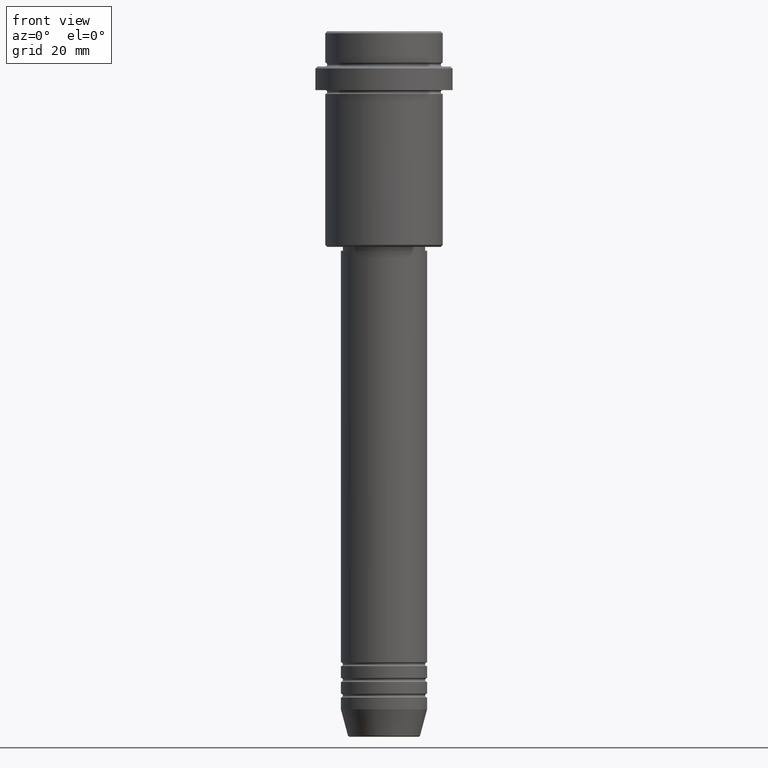
[diagram: clean part render]
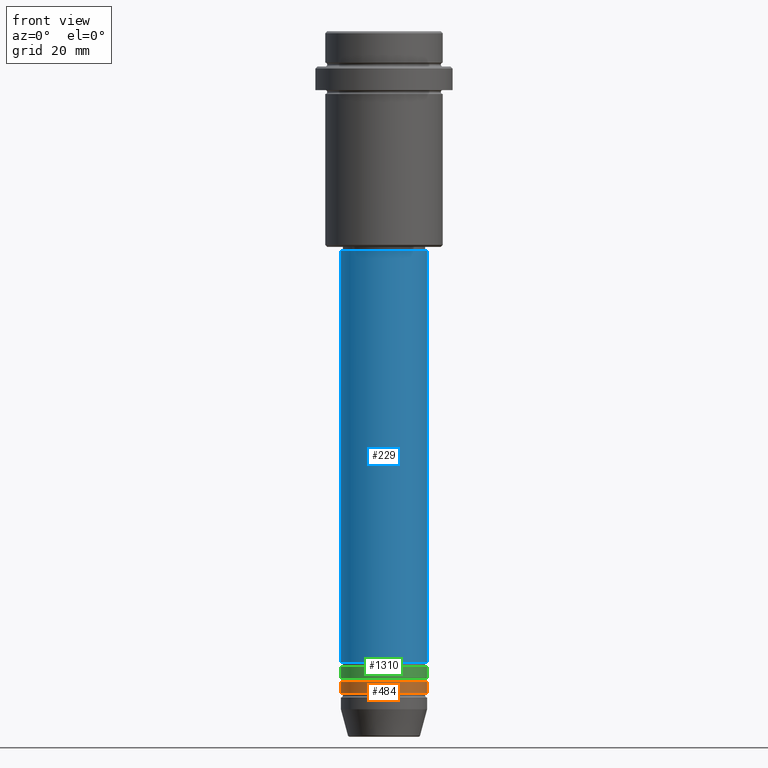
[diagram: same view with three faces highlighted in distinct colors, each labeled with its STEP entity id]
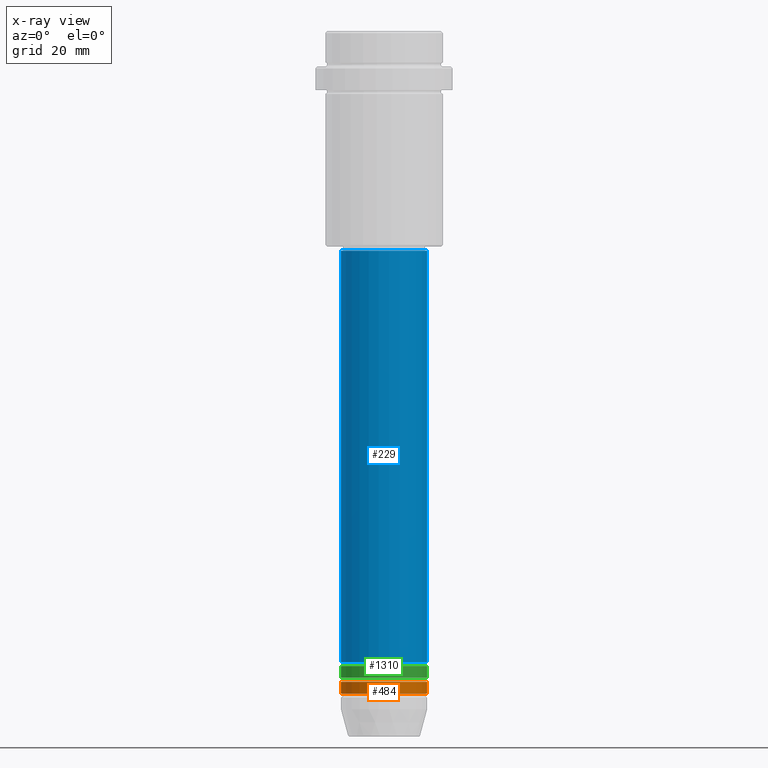
[diagram: x-ray of the same camera — body ghosted, the three highlighted faces saturated]
A machine part, front view with three faces highlighted in distinct colors.
The next image is the same camera in x-ray (body ghosted, the three faces saturated) — at least one of them is partly hidden behind the body in this view.
Their STEP definitions:

[orange] entity #484 — the highlighted cylindrical surface (partial cylindrical patch) has radius 11 mm, axis along (-0, -0, 1).
#60 = CARTESIAN_POINT ( 'NONE',  ( -11.00000000000000000, 1.347111479062088405E-15, 0.000000000000000000 ) ) ;
#119 = CYLINDRICAL_SURFACE ( 'NONE', #1223, 11.00000000000000000 ) ;
#164 = VERTEX_POINT ( 'NONE', #1098 ) ;
#207 = EDGE_CURVE ( 'NONE', #1021, #1233, #489, .T. ) ;
#215 = FACE_OUTER_BOUND ( 'NONE', #1370, .T. ) ;
#220 = DIRECTION ( 'NONE',  ( -0.000000000000000000, -0.000000000000000000, 1.000000000000000000 ) ) ;
#234 = ORIENTED_EDGE ( 'NONE', *, *, #207, .F. ) ;
#235 = CARTESIAN_POINT ( 'NONE',  ( -11.00000000000000000, 1.347111479062088405E-15, -168.9999999999998863 ) ) ;
#252 = ORIENTED_EDGE ( 'NONE', *, *, #457, .F. ) ;
#266 = VECTOR ( 'NONE', #962, 1000.000000000000000 ) ;
#302 = DIRECTION ( 'NONE',  ( 1.000000000000000000, 0.000000000000000000, 0.000000000000000000 ) ) ;
#385 = LINE ( 'NONE', #831, #522 ) ;
#393 = CARTESIAN_POINT ( 'NONE',  ( -11.00000000000000000, 1.347111479062088405E-15, -165.9999999999998579 ) ) ;
#396 = CARTESIAN_POINT ( 'NONE',  ( 0.000000000000000000, 0.000000000000000000, -168.9999999999998863 ) ) ;
#430 = DIRECTION ( 'NONE',  ( -0.000000000000000000, -0.000000000000000000, 1.000000000000000000 ) ) ;
#457 = EDGE_CURVE ( 'NONE', #1233, #1215, #562, .T. ) ;
#484 = ADVANCED_FACE ( 'NONE', ( #215 ), #119, .T. ) ;
#489 = LINE ( 'NONE', #60, #266 ) ;
#522 = VECTOR ( 'NONE', #1378, 1000.000000000000000 ) ;
#562 = CIRCLE ( 'NONE', #1363, 11.00000000000000000 ) ;
#797 = AXIS2_PLACEMENT_3D ( 'NONE', #396, #1280, #302 ) ;
#799 = EDGE_CURVE ( 'NONE', #1021, #164, #1072, .T. ) ;
#831 = CARTESIAN_POINT ( 'NONE',  ( 11.00000000000000000, 0.000000000000000000, 0.000000000000000000 ) ) ;
#874 = DIRECTION ( 'NONE',  ( 1.000000000000000000, 0.000000000000000000, 0.000000000000000000 ) ) ;
#887 = CARTESIAN_POINT ( 'NONE',  ( 0.000000000000000000, 0.000000000000000000, 0.000000000000000000 ) ) ;
#962 = DIRECTION ( 'NONE',  ( -0.000000000000000000, -0.000000000000000000, 1.000000000000000000 ) ) ;
#1021 = VERTEX_POINT ( 'NONE', #235 ) ;
#1072 = CIRCLE ( 'NONE', #797, 11.00000000000000000 ) ;
#1097 = DIRECTION ( 'NONE',  ( 1.000000000000000000, 0.000000000000000000, 0.000000000000000000 ) ) ;
#1098 = CARTESIAN_POINT ( 'NONE',  ( 11.00000000000000000, 0.000000000000000000, -168.9999999999998863 ) ) ;
#1162 = CARTESIAN_POINT ( 'NONE',  ( 11.00000000000000000, 0.000000000000000000, -165.9999999999998579 ) ) ;
#1174 = EDGE_CURVE ( 'NONE', #164, #1215, #385, .T. ) ;
#1215 = VERTEX_POINT ( 'NONE', #1162 ) ;
#1223 = AXIS2_PLACEMENT_3D ( 'NONE', #887, #430, #874 ) ;
#1233 = VERTEX_POINT ( 'NONE', #393 ) ;
#1253 = ORIENTED_EDGE ( 'NONE', *, *, #799, .T. ) ;
#1268 = ORIENTED_EDGE ( 'NONE', *, *, #1174, .T. ) ;
#1280 = DIRECTION ( 'NONE',  ( -0.000000000000000000, -0.000000000000000000, 1.000000000000000000 ) ) ;
#1301 = CARTESIAN_POINT ( 'NONE',  ( 0.000000000000000000, 0.000000000000000000, -165.9999999999998579 ) ) ;
#1363 = AXIS2_PLACEMENT_3D ( 'NONE', #1301, #220, #1097 ) ;
#1370 = EDGE_LOOP ( 'NONE', ( #234, #1253, #1268, #252 ) ) ;
#1378 = DIRECTION ( 'NONE',  ( -0.000000000000000000, -0.000000000000000000, 1.000000000000000000 ) ) ;

[blue] entity #229 — the highlighted cylindrical surface (partial cylindrical patch) has radius 11 mm, axis along (-0, -0, 1).
#41 = FACE_OUTER_BOUND ( 'NONE', #620, .T. ) ;
#46 = CARTESIAN_POINT ( 'NONE',  ( -11.00000000000000000, 1.347111479062088405E-15, 0.000000000000000000 ) ) ;
#66 = VECTOR ( 'NONE', #147, 1000.000000000000000 ) ;
#147 = DIRECTION ( 'NONE',  ( -0.000000000000000000, -0.000000000000000000, 1.000000000000000000 ) ) ;
#152 = CIRCLE ( 'NONE', #1157, 10.99999999999999822 ) ;
#158 = CARTESIAN_POINT ( 'NONE',  ( 0.000000000000000000, 0.000000000000000000, -55.99999999999999289 ) ) ;
#212 = CARTESIAN_POINT ( 'NONE',  ( 10.99999999999999822, 0.000000000000000000, -55.99999999999999289 ) ) ;
#229 = ADVANCED_FACE ( 'NONE', ( #41 ), #821, .T. ) ;
#281 = DIRECTION ( 'NONE',  ( -0.000000000000000000, -0.000000000000000000, 1.000000000000000000 ) ) ;
#314 = ORIENTED_EDGE ( 'NONE', *, *, #554, .F. ) ;
#339 = CARTESIAN_POINT ( 'NONE',  ( 11.00000000000000000, 0.000000000000000000, -160.9999999999998579 ) ) ;
#350 = DIRECTION ( 'NONE',  ( 1.000000000000000000, 0.000000000000000000, 0.000000000000000000 ) ) ;
#399 = VERTEX_POINT ( 'NONE', #1185 ) ;
#456 = CARTESIAN_POINT ( 'NONE',  ( 0.000000000000000000, 0.000000000000000000, -160.9999999999998579 ) ) ;
#485 = DIRECTION ( 'NONE',  ( -0.000000000000000000, -0.000000000000000000, 1.000000000000000000 ) ) ;
#554 = EDGE_CURVE ( 'NONE', #1149, #399, #682, .T. ) ;
#571 = LINE ( 'NONE', #1024, #1340 ) ;
#572 = EDGE_CURVE ( 'NONE', #968, #951, #571, .T. ) ;
#614 = DIRECTION ( 'NONE',  ( 1.000000000000000000, 0.000000000000000000, 0.000000000000000000 ) ) ;
#620 = EDGE_LOOP ( 'NONE', ( #314, #730, #958, #1015 ) ) ;
#624 = EDGE_CURVE ( 'NONE', #399, #951, #152, .T. ) ;
#635 = AXIS2_PLACEMENT_3D ( 'NONE', #456, #696, #350 ) ;
#670 = EDGE_CURVE ( 'NONE', #1149, #968, #771, .T. ) ;
#682 = LINE ( 'NONE', #46, #66 ) ;
#696 = DIRECTION ( 'NONE',  ( -0.000000000000000000, -0.000000000000000000, 1.000000000000000000 ) ) ;
#730 = ORIENTED_EDGE ( 'NONE', *, *, #670, .T. ) ;
#771 = CIRCLE ( 'NONE', #635, 11.00000000000000000 ) ;
#821 = CYLINDRICAL_SURFACE ( 'NONE', #1294, 11.00000000000000000 ) ;
#951 = VERTEX_POINT ( 'NONE', #212 ) ;
#958 = ORIENTED_EDGE ( 'NONE', *, *, #572, .T. ) ;
#968 = VERTEX_POINT ( 'NONE', #339 ) ;
#1015 = ORIENTED_EDGE ( 'NONE', *, *, #624, .F. ) ;
#1024 = CARTESIAN_POINT ( 'NONE',  ( 11.00000000000000000, 0.000000000000000000, 0.000000000000000000 ) ) ;
#1149 = VERTEX_POINT ( 'NONE', #1357 ) ;
#1157 = AXIS2_PLACEMENT_3D ( 'NONE', #158, #1218, #1329 ) ;
#1185 = CARTESIAN_POINT ( 'NONE',  ( -10.99999999999999822, 1.347111479062088207E-15, -55.99999999999999289 ) ) ;
#1218 = DIRECTION ( 'NONE',  ( -0.000000000000000000, -0.000000000000000000, 1.000000000000000000 ) ) ;
#1294 = AXIS2_PLACEMENT_3D ( 'NONE', #1369, #281, #614 ) ;
#1329 = DIRECTION ( 'NONE',  ( 1.000000000000000000, 0.000000000000000000, 0.000000000000000000 ) ) ;
#1340 = VECTOR ( 'NONE', #485, 1000.000000000000000 ) ;
#1357 = CARTESIAN_POINT ( 'NONE',  ( -11.00000000000000000, 1.347111479062088405E-15, -160.9999999999998579 ) ) ;
#1369 = CARTESIAN_POINT ( 'NONE',  ( 0.000000000000000000, 0.000000000000000000, 0.000000000000000000 ) ) ;

[green] entity #1310 — the highlighted cylindrical surface (partial cylindrical patch) has radius 11 mm, axis along (-0, -0, 1).
#35 = ORIENTED_EDGE ( 'NONE', *, *, #409, .F. ) ;
#85 = AXIS2_PLACEMENT_3D ( 'NONE', #941, #523, #481 ) ;
#188 = VERTEX_POINT ( 'NONE', #641 ) ;
#214 = EDGE_CURVE ( 'NONE', #454, #188, #584, .T. ) ;
#227 = CARTESIAN_POINT ( 'NONE',  ( 11.00000000000000000, 0.000000000000000000, 0.000000000000000000 ) ) ;
#277 = VERTEX_POINT ( 'NONE', #1239 ) ;
#284 = CARTESIAN_POINT ( 'NONE',  ( 0.000000000000000000, 0.000000000000000000, -161.9999999999998579 ) ) ;
#375 = AXIS2_PLACEMENT_3D ( 'NONE', #284, #401, #494 ) ;
#394 = CIRCLE ( 'NONE', #375, 11.00000000000000000 ) ;
#401 = DIRECTION ( 'NONE',  ( -0.000000000000000000, -0.000000000000000000, 1.000000000000000000 ) ) ;
#405 = CYLINDRICAL_SURFACE ( 'NONE', #472, 11.00000000000000000 ) ;
#409 = EDGE_CURVE ( 'NONE', #454, #277, #529, .T. ) ;
#447 = VERTEX_POINT ( 'NONE', #759 ) ;
#454 = VERTEX_POINT ( 'NONE', #555 ) ;
#472 = AXIS2_PLACEMENT_3D ( 'NONE', #1099, #531, #544 ) ;
#481 = DIRECTION ( 'NONE',  ( 1.000000000000000000, 0.000000000000000000, 0.000000000000000000 ) ) ;
#494 = DIRECTION ( 'NONE',  ( 1.000000000000000000, 0.000000000000000000, 0.000000000000000000 ) ) ;
#523 = DIRECTION ( 'NONE',  ( -0.000000000000000000, -0.000000000000000000, 1.000000000000000000 ) ) ;
#529 = LINE ( 'NONE', #1090, #705 ) ;
#531 = DIRECTION ( 'NONE',  ( -0.000000000000000000, -0.000000000000000000, 1.000000000000000000 ) ) ;
#544 = DIRECTION ( 'NONE',  ( 1.000000000000000000, 0.000000000000000000, 0.000000000000000000 ) ) ;
#555 = CARTESIAN_POINT ( 'NONE',  ( -11.00000000000000000, 1.347111479062088405E-15, -164.9999999999998579 ) ) ;
#584 = CIRCLE ( 'NONE', #85, 11.00000000000000000 ) ;
#641 = CARTESIAN_POINT ( 'NONE',  ( 11.00000000000000000, 0.000000000000000000, -164.9999999999998579 ) ) ;
#653 = LINE ( 'NONE', #227, #822 ) ;
#705 = VECTOR ( 'NONE', #1086, 1000.000000000000000 ) ;
#738 = EDGE_CURVE ( 'NONE', #277, #447, #394, .T. ) ;
#759 = CARTESIAN_POINT ( 'NONE',  ( 11.00000000000000000, 0.000000000000000000, -161.9999999999998579 ) ) ;
#822 = VECTOR ( 'NONE', #1283, 1000.000000000000000 ) ;
#910 = ORIENTED_EDGE ( 'NONE', *, *, #1374, .T. ) ;
#941 = CARTESIAN_POINT ( 'NONE',  ( 0.000000000000000000, 0.000000000000000000, -164.9999999999998579 ) ) ;
#1082 = ORIENTED_EDGE ( 'NONE', *, *, #738, .F. ) ;
#1083 = FACE_OUTER_BOUND ( 'NONE', #1236, .T. ) ;
#1086 = DIRECTION ( 'NONE',  ( -0.000000000000000000, -0.000000000000000000, 1.000000000000000000 ) ) ;
#1090 = CARTESIAN_POINT ( 'NONE',  ( -11.00000000000000000, 1.347111479062088405E-15, 0.000000000000000000 ) ) ;
#1099 = CARTESIAN_POINT ( 'NONE',  ( 0.000000000000000000, 0.000000000000000000, 0.000000000000000000 ) ) ;
#1236 = EDGE_LOOP ( 'NONE', ( #35, #1244, #910, #1082 ) ) ;
#1239 = CARTESIAN_POINT ( 'NONE',  ( -11.00000000000000000, 1.347111479062088405E-15, -161.9999999999998579 ) ) ;
#1244 = ORIENTED_EDGE ( 'NONE', *, *, #214, .T. ) ;
#1283 = DIRECTION ( 'NONE',  ( -0.000000000000000000, -0.000000000000000000, 1.000000000000000000 ) ) ;
#1310 = ADVANCED_FACE ( 'NONE', ( #1083 ), #405, .T. ) ;
#1374 = EDGE_CURVE ( 'NONE', #188, #447, #653, .T. ) ;